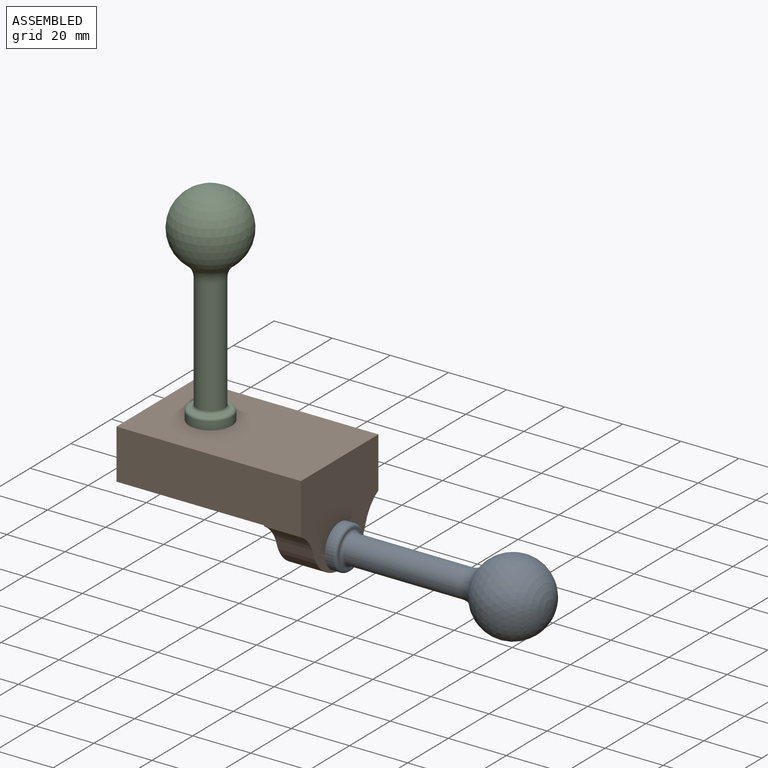
[diagram: assembled view]
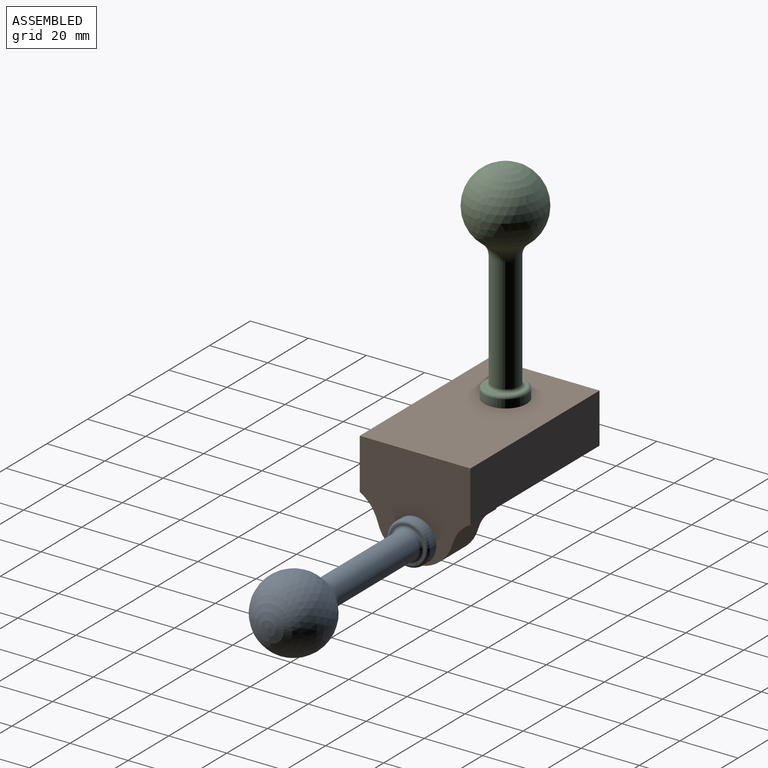
[diagram: assembled view, second angle]
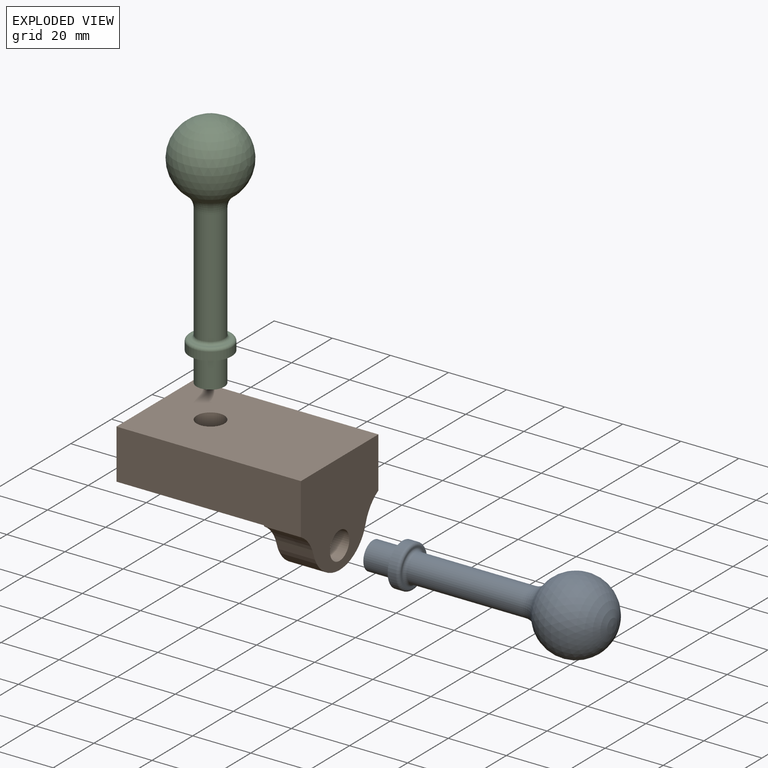
[diagram: exploded view]
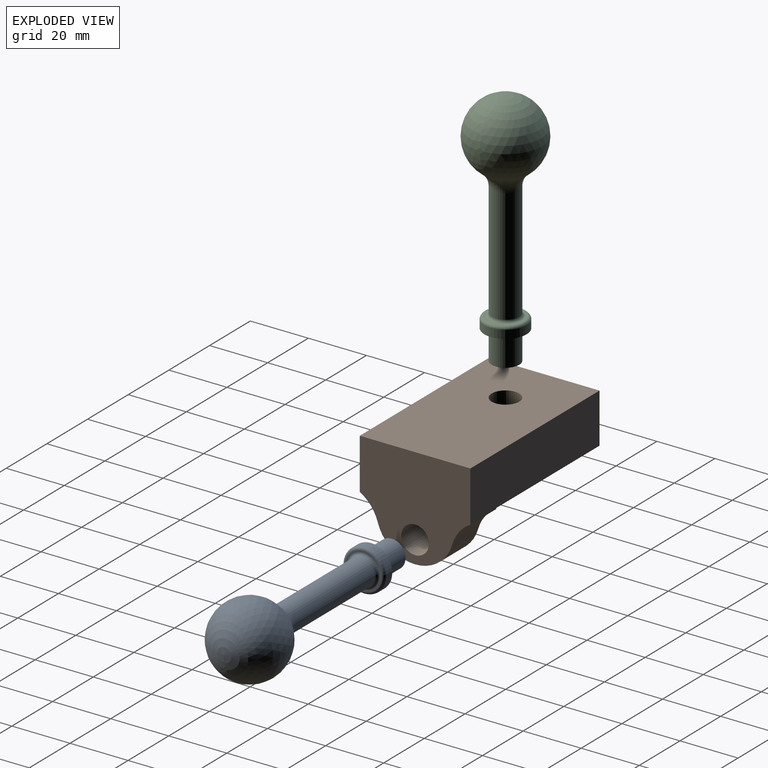
[diagram: exploded view, second angle]
ASSEMBLY  parts=3 mates=2
PART A: 12 faces, bbox 82.6x25.4x25.4 mm
  f0: cylinder r=2.08mm len=21.59mm, axis (-1,0,0), area 282.7mm2, adj f1,f11
  f1: plane 9.53x9.53mm, normal (1,0,0), area 57.6mm2, adj f0,f2
  f2: cylinder r=4.76mm len=10.16mm, axis (-1,0,0), area 304mm2, adj f1,f3
  f3: plane 14.61x14.61mm, normal (1,0,0), area 96.3mm2, adj f2,f4
  f4: cylinder r=7.3mm len=14.61mm, axis (-1,0,0), area 128.2mm2, adj f3,f5
  f5: torus R=6.29mm, axis (-1,0,0), area 69.5mm2, adj f4,f6
  f6: plane 12.57x12.57mm, normal (-1,0,0), area 19.3mm2, adj f5,f7
  f7: torus R=5.78mm, axis (-1,0,0), area 51.5mm2, adj f6,f8
  f8: cylinder r=4.76mm len=39.41mm, axis (-1,0,0), area 1179.2mm2, adj f7,f9
  f9: torus R=11.11mm, axis (-1,0,0), area 214.5mm2, adj f8,f10
  f10: sphere r=12.7mm, area 1836.5mm2, adj f9
  f11: plane 4.17x4.17mm, normal (1,0,0), area 13.6mm2, adj f0
PART B: 19 faces, bbox 63.5x38.1x34.9 mm
  f0: plane 38.1x17.15mm, normal (1,0,0), area 612.9mm2, adj f1,f2,f4,f7,f8,f13,f14,f15
  f1: plane 50.8x15.88mm, normal (0,0,1), area 798.6mm2, adj f0,f2,f5,f6,f14,f17
  f2: plane 63.5x17.46mm, normal (0,1,0), area 1092.7mm2, adj f0,f1,f3,f5,f8,f11
  f3: plane 38.1x34.93mm, normal (-1,0,0), area 1012.7mm2, adj f2,f4,f8,f9,f10,f11,f12
  f4: plane 63.5x17.46mm, normal (0,-1,0), area 1092.7mm2, adj f0,f3,f5,f7,f8,f10
  f5: plane 38.1x24.13mm, normal (1,0,0), area 399.8mm2, adj f1,f2,f4,f7,f9,f10,f11,f12
  f6: cylinder r=4.76mm len=17.15mm, axis (0,0,-1), area 424.8mm2, adj f1,f7,f8,f13,f14,f15,f16,f17
  f7: plane 50.8x15.88mm, normal (0,0,1), area 798.6mm2, adj f0,f4,f5,f6,f15,f16
  f8: plane 63.5x38.1mm, normal (0,0,-1), area 2348.1mm2, adj f0,f2,f3,f4,f6
  f9: cylinder r=13.37mm len=25.69mm, axis (-1,0,0), area 437.8mm2, adj f3,f5,f10,f11
  f10: cylinder r=13.18mm len=12.7mm, axis (-1,0,0), area 130mm2, adj f3,f4,f5,f9
  f11: cylinder r=13.18mm len=12.7mm, axis (-1,0,0), area 129.8mm2, adj f2,f3,f5,f9
  f12: cylinder r=4.76mm len=12.7mm, axis (-1,0,0), area 380mm2, adj f3,f5
  f13: plane 15.5x6.35mm, normal (0,0,1), area 93.1mm2, adj f0,f6,f14,f15
  f14: plane 15.5x6.35mm, normal (0,-1,0), area 98.4mm2, adj f0,f1,f6,f13
  f15: plane 15.5x6.35mm, normal (0,1,0), area 98.4mm2, adj f0,f6,f7,f13
  f16: plane 28.2x6.35mm, normal (0,1,0), area 179.1mm2, adj f5,f6,f7,f18
  f17: plane 28.2x6.35mm, normal (0,-1,0), area 179.1mm2, adj f1,f5,f6,f18
  f18: plane 28.2x6.35mm, normal (0,0,1), area 173.8mm2, adj f5,f6,f16,f17
PART C: same geometry as A
PLACE A rot(axis=(0,1,0),180deg) t=(-0.28,-19.19,27.74)mm
PLACE B rot(axis=(0,1,0),180deg) t=(-91.74,-19.19,55.04)mm
PLACE C rot(axis=(0,1,0),90deg) t=(-104.44,-19.19,114.74)mm
MATE slider A.f0 <-> B.f12  axis (1,0,0) through (-59.99,-19.19,27.74)mm
MATE slider C.f0 <-> B.f6  axis (0,0,1) through (-104.44,-19.19,55.04)mm
